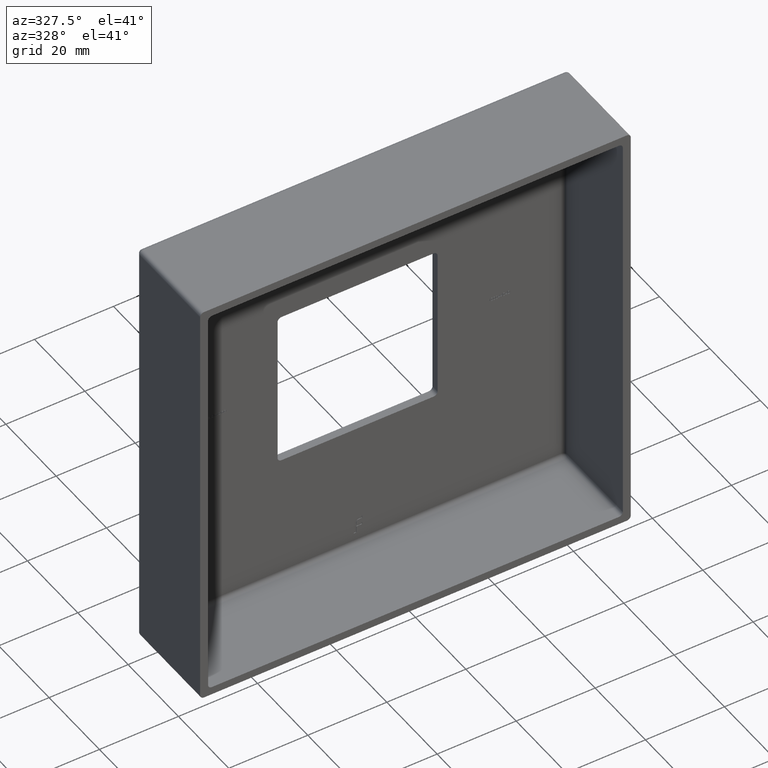
[diagram: clean part render]
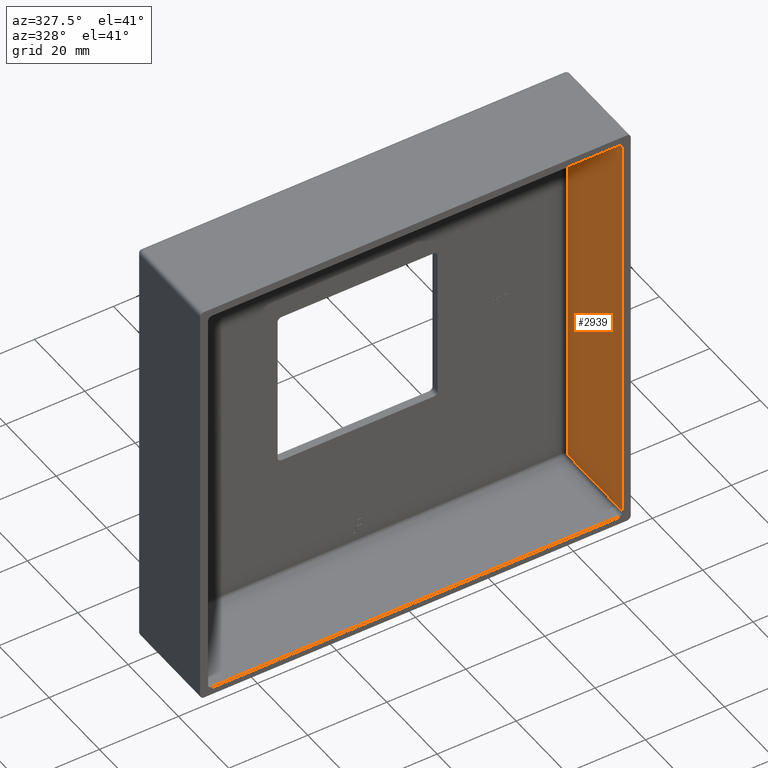
[diagram: same view with one face highlighted and labeled with its STEP entity id]
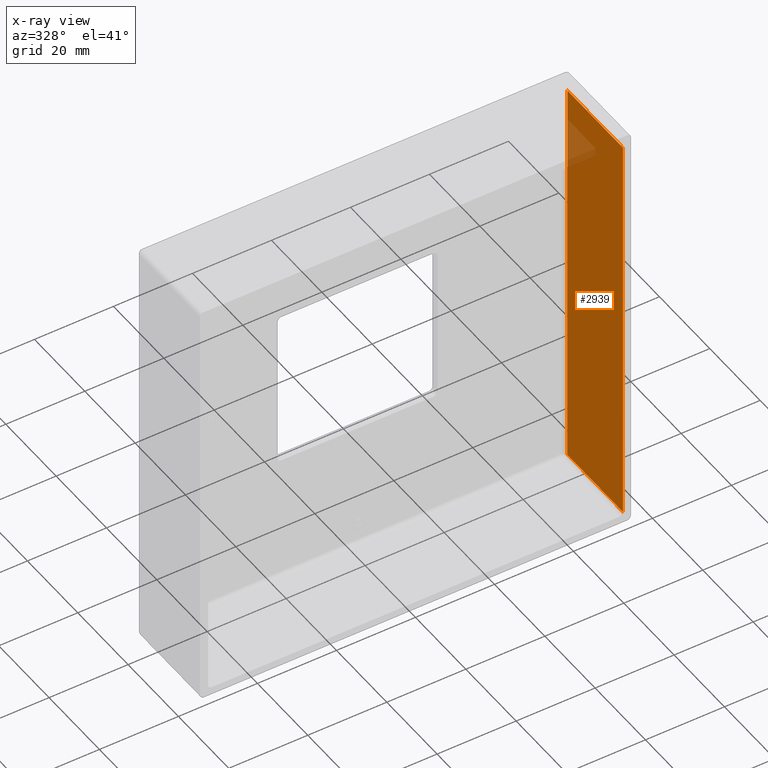
[diagram: x-ray of the same camera — body ghosted, the highlighted face saturated]
A machine part, auxiliary view. The second image highlights one B-rep face of the part: STEP entity #2939.
The next image is the same camera in x-ray: the body ghosted, the highlighted face saturated — about 4% of this face is hidden behind the body in this view.
In plain terms, the highlighted planar face has unit normal (-1, 0, 0).
Its self-contained STEP definition (entity closure, byte-faithful):
#500 = DIRECTION ( 'NONE',  ( 1.909787313001989722E-16, 0.000000000000000000, 1.000000000000000000 ) ) ;
#1120 = AXIS2_PLACEMENT_3D ( 'NONE', #5603, #11857, #500 ) ;
#2394 = VECTOR ( 'NONE', #5716, 1000.000000000000000 ) ;
#2429 = DIRECTION ( 'NONE',  ( -0.000000000000000000, 1.000000000000000000, -0.000000000000000000 ) ) ;
#2939 = ADVANCED_FACE ( 'NONE', ( #14127 ), #10583, .T. ) ;
#3080 = CARTESIAN_POINT ( 'NONE',  ( 52.49999999999998579, 0.000000000000000000, -51.50000000000000711 ) ) ;
#3555 = CARTESIAN_POINT ( 'NONE',  ( 52.49999999999998579, 0.000000000000000000, -51.50000000000000711 ) ) ;
#3788 = VECTOR ( 'NONE', #2429, 1000.000000000000000 ) ;
#4606 = EDGE_CURVE ( 'NONE', #5443, #10998, #15913, .T. ) ;
#4798 = LINE ( 'NONE', #8371, #2394 ) ;
#5114 = LINE ( 'NONE', #3080, #5900 ) ;
#5185 = ORIENTED_EDGE ( 'NONE', *, *, #11375, .T. ) ;
#5443 = VERTEX_POINT ( 'NONE', #9627 ) ;
#5603 = CARTESIAN_POINT ( 'NONE',  ( 52.49999999999998579, 25.00000000000000000, -54.50000000000000711 ) ) ;
#5716 = DIRECTION ( 'NONE',  ( -1.909787313001989722E-16, 0.000000000000000000, -1.000000000000000000 ) ) ;
#5900 = VECTOR ( 'NONE', #14603, 1000.000000000000000 ) ;
#5994 = VERTEX_POINT ( 'NONE', #3555 ) ;
#6195 = CARTESIAN_POINT ( 'NONE',  ( 52.50000000000000711, 0.000000000000000000, 51.49999999999999289 ) ) ;
#6748 = CARTESIAN_POINT ( 'NONE',  ( 52.49999999999998579, 22.00000000000000000, -54.50000000000000711 ) ) ;
#6750 = EDGE_LOOP ( 'NONE', ( #8334, #16393, #9376, #5185 ) ) ;
#8001 = DIRECTION ( 'NONE',  ( -1.909787313001989722E-16, 0.000000000000000000, -1.000000000000000000 ) ) ;
#8334 = ORIENTED_EDGE ( 'NONE', *, *, #4606, .T. ) ;
#8371 = CARTESIAN_POINT ( 'NONE',  ( 52.49999999999998579, 0.000000000000000000, -54.50000000000000711 ) ) ;
#8408 = CARTESIAN_POINT ( 'NONE',  ( 52.49999999999998579, 22.00000000000000000, -51.50000000000000711 ) ) ;
#9376 = ORIENTED_EDGE ( 'NONE', *, *, #10636, .F. ) ;
#9512 = VERTEX_POINT ( 'NONE', #6195 ) ;
#9627 = CARTESIAN_POINT ( 'NONE',  ( 52.50000000000000711, 22.00000000000000000, 51.49999999999999289 ) ) ;
#10318 = VECTOR ( 'NONE', #8001, 1000.000000000000000 ) ;
#10583 = PLANE ( 'NONE',  #1120 ) ;
#10636 = EDGE_CURVE ( 'NONE', #9512, #5994, #4798, .T. ) ;
#10998 = VERTEX_POINT ( 'NONE', #8408 ) ;
#11375 = EDGE_CURVE ( 'NONE', #9512, #5443, #14991, .T. ) ;
#11857 = DIRECTION ( 'NONE',  ( -1.000000000000000000, 0.000000000000000000, 1.909787313001989722E-16 ) ) ;
#14127 = FACE_OUTER_BOUND ( 'NONE', #6750, .T. ) ;
#14449 = EDGE_CURVE ( 'NONE', #10998, #5994, #5114, .T. ) ;
#14603 = DIRECTION ( 'NONE',  ( 0.000000000000000000, -1.000000000000000000, 0.000000000000000000 ) ) ;
#14991 = LINE ( 'NONE', #16403, #3788 ) ;
#15913 = LINE ( 'NONE', #6748, #10318 ) ;
#16393 = ORIENTED_EDGE ( 'NONE', *, *, #14449, .T. ) ;
#16403 = CARTESIAN_POINT ( 'NONE',  ( 52.50000000000000711, 23.00000000000000000, 51.49999999999999289 ) ) ;